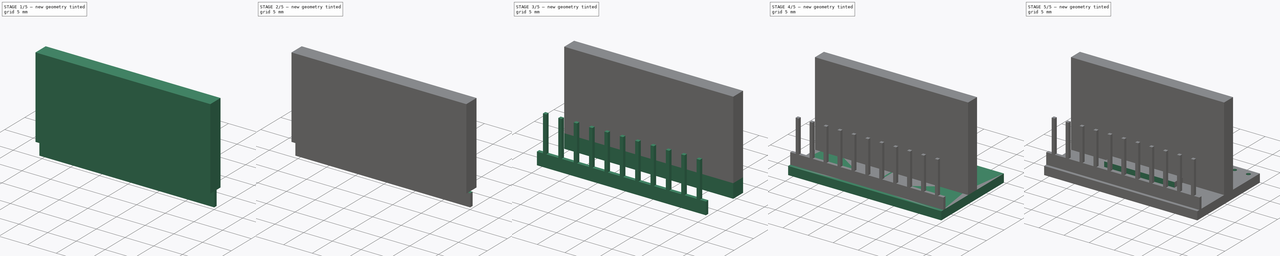
[diagram: build sequence overview — one tinted view per stage of 5, left to right]
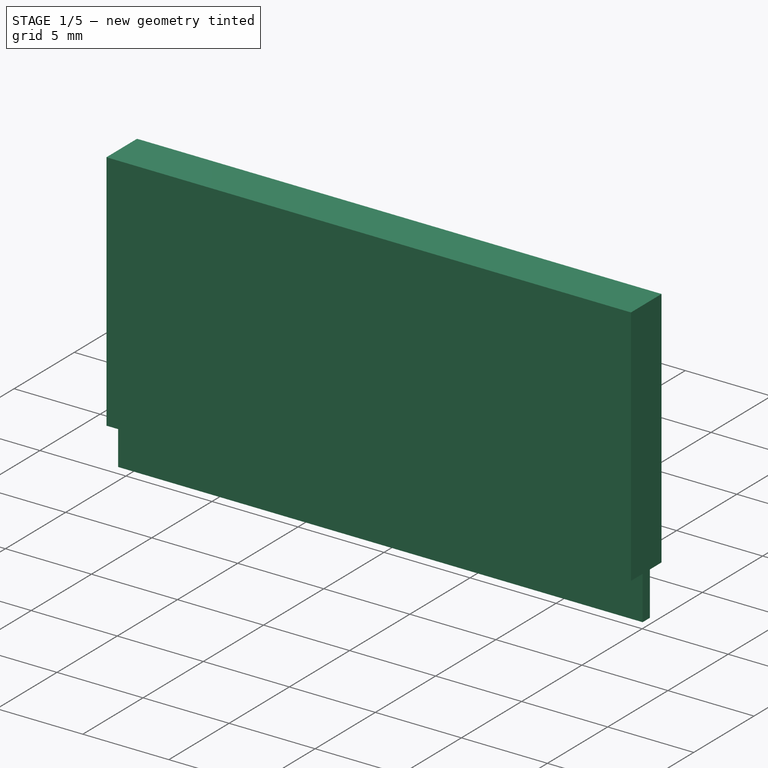
[diagram: stage 1 of 5 — iso view after this stage's code; geometry added in this stage tinted green]
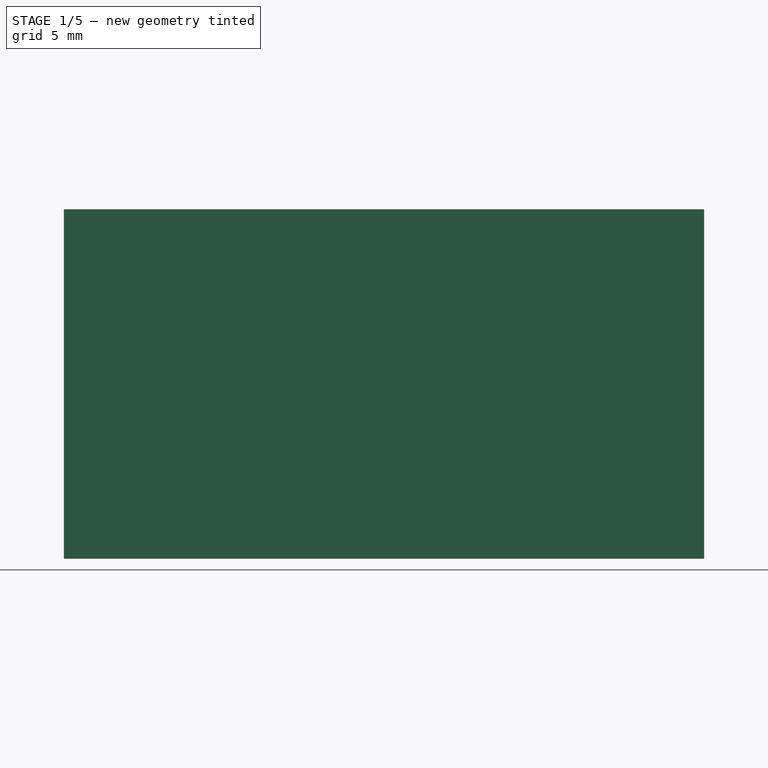
[diagram: stage 1 of 5 — front view after this stage's code; geometry added in this stage tinted green]
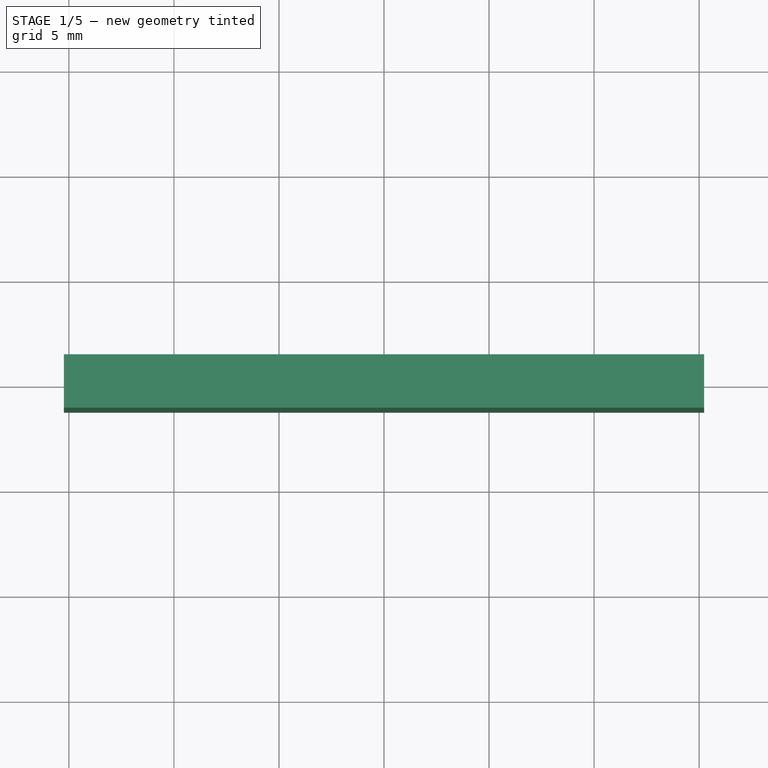
[diagram: stage 1 of 5 — top view after this stage's code; geometry added in this stage tinted green]
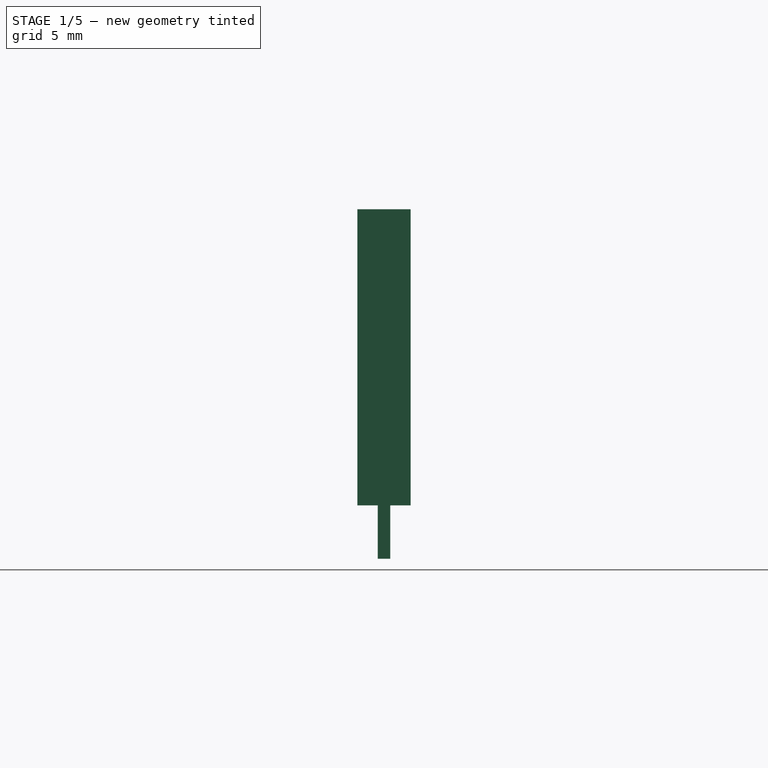
[diagram: stage 1 of 5 — right view after this stage's code; geometry added in this stage tinted green]
FCSTD DOCUMENT  (FreeCAD 0.19R24276 (Git))
Label: Adafruit_I2C_Expander
License: All rights reserved
LicenseURL: http://en.wikipedia.org/wiki/All_rights_reserved
objects: Sketcher::SketchObject×8, PartDesign::Body×8, PartDesign::Pad×5, PartDesign::LinearPattern×4, PartDesign::Pocket×3, PartDesign::FeatureBase×3, Spreadsheet::Sheet×1, App::Part×1
note: 39 computed .brp shape members not serialized (recipe doc carries the construction recipe); baked Part::Feature solids carry a one-line shape summary decoded from their .brp

FEATURE [PartDesign::Body] Body006  label="PinBlock001"
  BaseFeature = -> Body005
  Group = -> [Clone]
  Origin = -> Origin010
  Placement = pos=(0,-8,0) rot=(0,0,1;0rad)
  Tip = -> Clone
FEATURE [Sketcher::SketchObject] Sketch006
  FullyConstrained = true
  MapMode = 5
  Placement = pos=(0,0,0) rot=(1,0,0;1.5708rad)
  Support = -> [XZ_Plane011]
  expr: Constraints[9] = <<params_i2c_exp>>.pin_square_block_dim + <<params_i2c_exp>>.pin_leng
  expr: Constraints[10] = <<params_i2c_exp>>.exp_i2c_leng
  sketch-geometry (4):
    g0: LineSegment StartX=-15.24 StartY=8.74 StartZ=0 EndX=15.24 EndY=8.74 EndZ=0
    g1: LineSegment StartX=15.24 StartY=8.74 StartZ=0 EndX=15.24 EndY=0 EndZ=0
    g2: LineSegment StartX=15.24 StartY=0 StartZ=0 EndX=-15.24 EndY=0 EndZ=0
    g3: LineSegment StartX=-15.24 StartY=0 StartZ=0 EndX=-15.24 EndY=8.74 EndZ=0
  constraints (11):
    c: Coincident(g0,g1)
    c: Coincident(g1,g2)
    c: Coincident(g2,g3)
    c: Coincident(g3,g0)
    c: Horizontal(g0)
    c: Horizontal(g2)
    c: Vertical(g1)
    c: Vertical(g3)
    c: Symmetric(g2,g1,g-1)
    c: DistanceY(g1,g1) = 8.74
    c: DistanceX(g2,g2) = 30.48
FEATURE [PartDesign::Pad] Pad003
  Direction = (1,1,1)
  Length = 0.6
  Length2 = 100
  Midplane = true
  Placement = pos=(0,0,0) rot=(1,0,0;1.5708rad)
  Profile = -> Sketch006
  Type = 0
  expr: Length = <<params_i2c_exp>>.pin_width
FEATURE [PartDesign::Body] Body008  label="Pins001"
  BaseFeature = -> Body007
  Group = -> [Clone001]
  Origin = -> Origin012
  Placement = pos=(0,16,0) rot=(0,0,1;0rad)
  Tip = -> Clone001
FEATURE [Sketcher::SketchObject] Sketch008
  FullyConstrained = true
  MapMode = 5
  Placement = pos=(0,0,0) rot=(1,0,0;1.5708rad)
  Support = -> [XZ_Plane013]
  expr: Constraints[12] = <<params_i2c_exp>>.pin_square_block_dim
  expr: Constraints[11] = <<params_i2c_exp>>.pin_jumper_leng
  expr: Constraints[10] = <<params_i2c_exp>>.exp_i2c_leng
  sketch-geometry (5):
    g0: LineSegment StartX=-15.24 StartY=16.64 StartZ=0 EndX=15.24 EndY=16.64 EndZ=0
    g1: LineSegment StartX=15.24 StartY=16.64 StartZ=0 EndX=15.24 EndY=2.54 EndZ=0
    g2: LineSegment StartX=15.24 StartY=2.54 StartZ=0 EndX=-15.24 EndY=2.54 EndZ=0
    g3: LineSegment StartX=-15.24 StartY=2.54 StartZ=0 EndX=-15.24 EndY=16.64 EndZ=0
    g4: GeomPoint X=0 Y=2.54 Z=0
  constraints (13):
    c: Coincident(g0,g1)
    c: Coincident(g1,g2)
    c: Coincident(g2,g3)
    c: Coincident(g3,g0)
    c: Horizontal(g0)
    c: Horizontal(g2)
    c: Vertical(g1)
    c: Vertical(g3)
    c: PointOnObject(g4,g-2)
    c: Symmetric(g2,g1,g4)
    c: DistanceX(g0,g0) = 30.48
    c: DistanceY(g1,g1) = 14.1
    c: DistanceY(g-1,g4) = 2.54
FEATURE [PartDesign::Pad] Pad004
  Direction = (1,1,1)
  Length = 2.54
  Length2 = 100
  Midplane = true
  Placement = pos=(0,0,0) rot=(1,0,0;1.5708rad)
  Profile = -> Sketch008
  Type = 0
  expr: Length = <<params_i2c_exp>>.pin_square_block_dim
FEATURE [PartDesign::Body] Body009  label="JumperHeader"
  Group = -> [Sketch008,Pad004]
  Origin = -> Origin013
  Placement = pos=(0,8,0) rot=(0,0,1;0rad)
  Tip = -> Pad004
FEATURE [PartDesign::FeatureBase] Clone002
  BaseFeature = -> Body009
FEATURE [PartDesign::Body] Body010  label="JumperHeader001"
  BaseFeature = -> Body009
  Group = -> [Clone002]
  Origin = -> Origin014
  Placement = pos=(0,-8,0) rot=(0,0,1;0rad)
  Tip = -> Clone002
FEATURE [App::Part] Part  label="AdaF_I2CExp_Part"
  Group = -> [Body,Body004,Body005,Body006,Body007,Body008,Body009,Body010]
  Origin = -> Origin
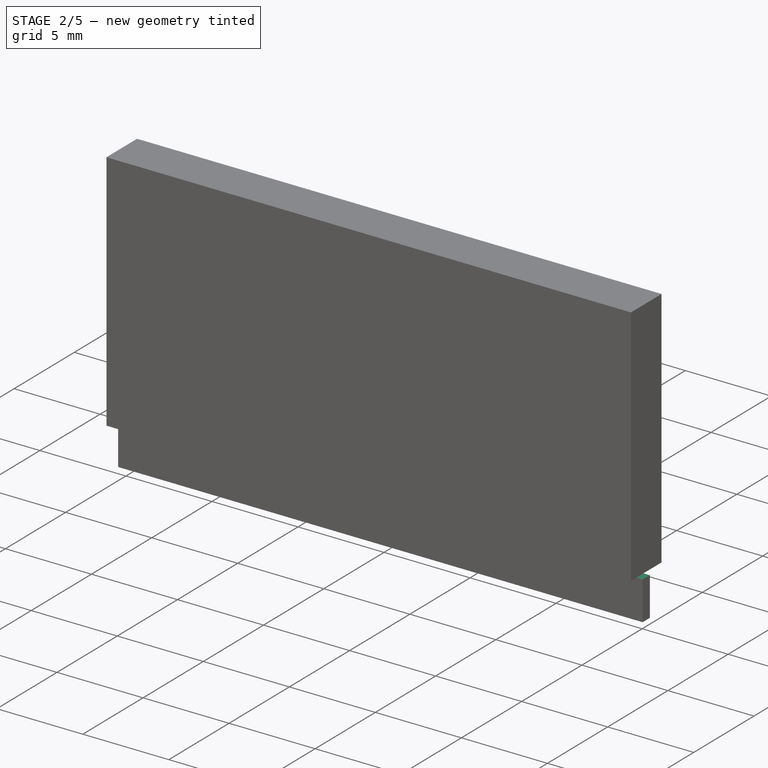
[diagram: stage 2 of 5 — iso view after this stage's code; geometry added in this stage tinted green]
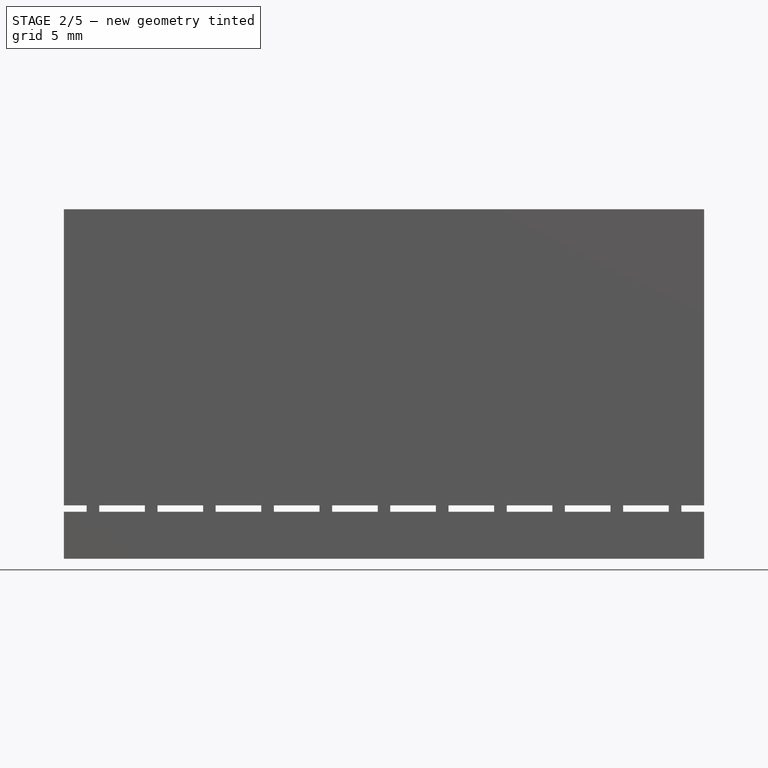
[diagram: stage 2 of 5 — front view after this stage's code; geometry added in this stage tinted green]
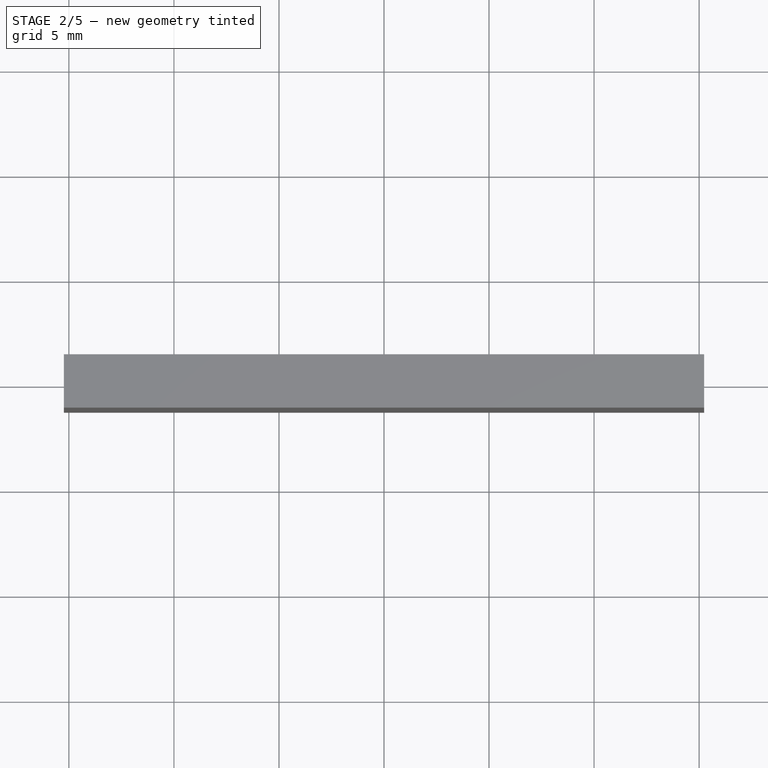
[diagram: stage 2 of 5 — top view after this stage's code; geometry added in this stage tinted green]
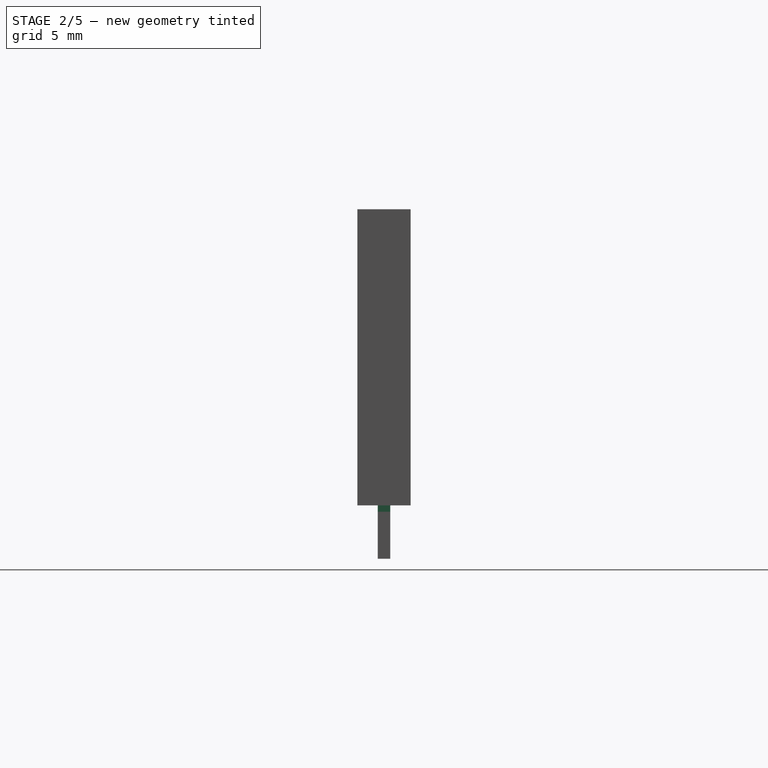
[diagram: stage 2 of 5 — right view after this stage's code; geometry added in this stage tinted green]
FEATURE [Sketcher::SketchObject] Sketch007
  FullyConstrained = true
  MapMode = 5
  Placement = pos=(0,0,0) rot=(1,0,0;1.5708rad)
  Support = -> [XZ_Plane009]
  expr: Constraints[27] = <<params_i2c_exp>>.pin_spacing
  expr: Constraints[28] = <<params_i2c_exp>>.pin_leng * 2
  expr: Constraints[21] = <<params_i2c_exp>>.pin_width
  expr: Constraints[20] = <<params_i2c_exp>>.pin_square_block_dim - <<params_i2c_exp>>.std_tol
  sketch-geometry (13):
    g0: LineSegment StartX=-2.24 StartY=14.64 StartZ=0 EndX=-0.3 EndY=14.64 EndZ=0
    g1: LineSegment StartX=-0.3 StartY=14.64 StartZ=0 EndX=-0.3 EndY=2.24 EndZ=0
    g2: LineSegment StartX=-0.3 StartY=2.24 StartZ=0 EndX=-2.24 EndY=2.24 EndZ=0
    g3: LineSegment StartX=-2.24 StartY=2.24 StartZ=0 EndX=-2.24 EndY=14.64 EndZ=0
    g4: LineSegment StartX=0.3 StartY=14.64 StartZ=0 EndX=2.24 EndY=14.64 EndZ=0
    g5: LineSegment StartX=2.24 StartY=14.64 StartZ=0 EndX=2.24 EndY=2.24 EndZ=0
    g6: LineSegment StartX=2.24 StartY=2.24 StartZ=0 EndX=0.3 EndY=2.24 EndZ=0
    g7: LineSegment StartX=0.3 StartY=2.24 StartZ=0 EndX=0.3 EndY=14.64 EndZ=0
    g8: LineSegment StartX=-0.3 StartY=14.64 StartZ=0 EndX=0.3 EndY=14.64 EndZ=0
    g9: LineSegment StartX=-0.3 StartY=2.24 StartZ=0 EndX=0.3 EndY=2.24 EndZ=0
    g10: GeomPoint X=0 Y=2.24 Z=0
    g11: GeomPoint X=-1.27 Y=2.24 Z=0
    g12: GeomPoint X=1.27 Y=2.24 Z=0
  constraints (30):
    c: Coincident(g0,g1)
    c: Coincident(g1,g2)
    c: Coincident(g2,g3)
    c: Coincident(g3,g0)
    c: Horizontal(g0)
    c: Horizontal(g2)
    c: Vertical(g1)
    c: Vertical(g3)
    c: Coincident(g4,g5)
    c: Coincident(g5,g6)
    c: Coincident(g6,g7)
    c: Coincident(g7,g4)
    c: Horizontal(g4)
    c: Vertical(g5)
    c: Vertical(g7)
    c: Coincident(g8,g0)
    c: Coincident(g8,g4)
    c: Coincident(g9,g1)
    c: Coincident(g9,g6)
    c: Horizontal(g8)
    c: DistanceY(g-1,g5) = 2.24
    c: DistanceX(g8,g8) = 0.6
    c: PointOnObject(g10,g-2)
    c: Symmetric(g1,g6,g10)
    c: Symmetric(g2,g1,g11)
    c: Symmetric(g6,g5,g12)
    c: Symmetric(g11,g12,g10)
    c: DistanceX(g11,g12) = 2.54
    c: DistanceY(g5,g5) = 12.4
    c: Horizontal(g9)
FEATURE [PartDesign::Pocket] Pocket002
  BaseFeature = -> Pad003
  Length = 5
  Length2 = 100
  Midplane = true
  Placement = pos=(0,0,0) rot=(1,0,0;1.5708rad)
  Profile = -> Sketch007
  Type = 1
FEATURE [PartDesign::LinearPattern] LinearPattern002
  BaseFeature = -> Pocket002
  Direction = -> X_Axis011
  Length = 30.48
  Occurrences = 12
  Originals = -> [Pocket002]
  Placement = pos=(0,0,0) rot=(1,0,0;1.5708rad)
  expr: Occurrences = <<params_i2c_exp>>.exp_i2c_num_pins
  expr: Length = <<params_i2c_exp>>.pin_spacing * <<params_i2c_exp>>.exp_i2c_num_pins
FEATURE [PartDesign::LinearPattern] LinearPattern003
  BaseFeature = -> LinearPattern002
  Direction = -> X_Axis011
  Length = 30.48
  Occurrences = 12
  Originals = -> [Pocket002]
  Placement = pos=(0,0,0) rot=(1,0,0;1.5708rad)
  Reversed = true
  expr: Occurrences = <<params_i2c_exp>>.exp_i2c_num_pins
  expr: Length = <<params_i2c_exp>>.pin_spacing * <<params_i2c_exp>>.exp_i2c_num_pins
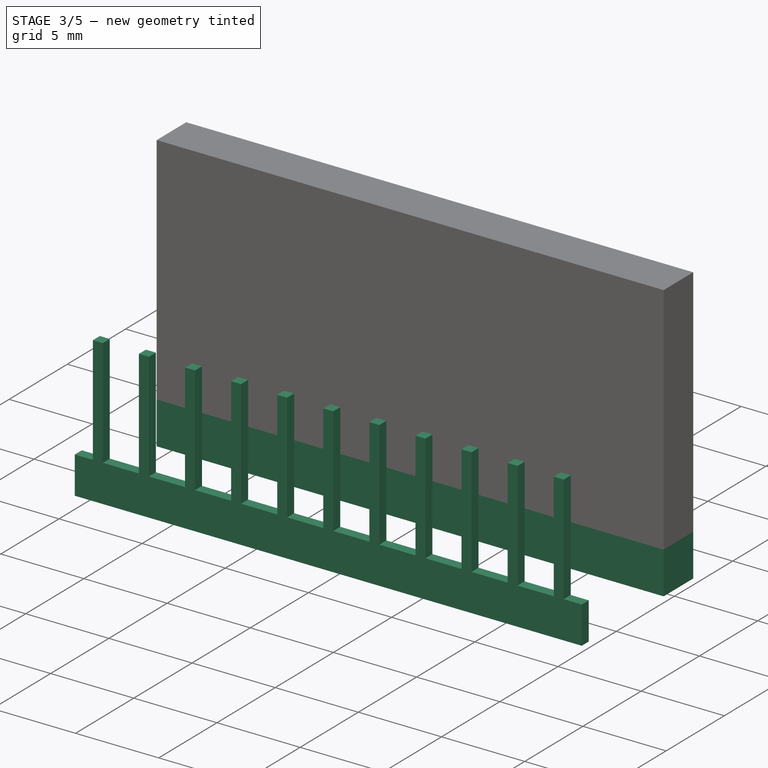
[diagram: stage 3 of 5 — iso view after this stage's code; geometry added in this stage tinted green]
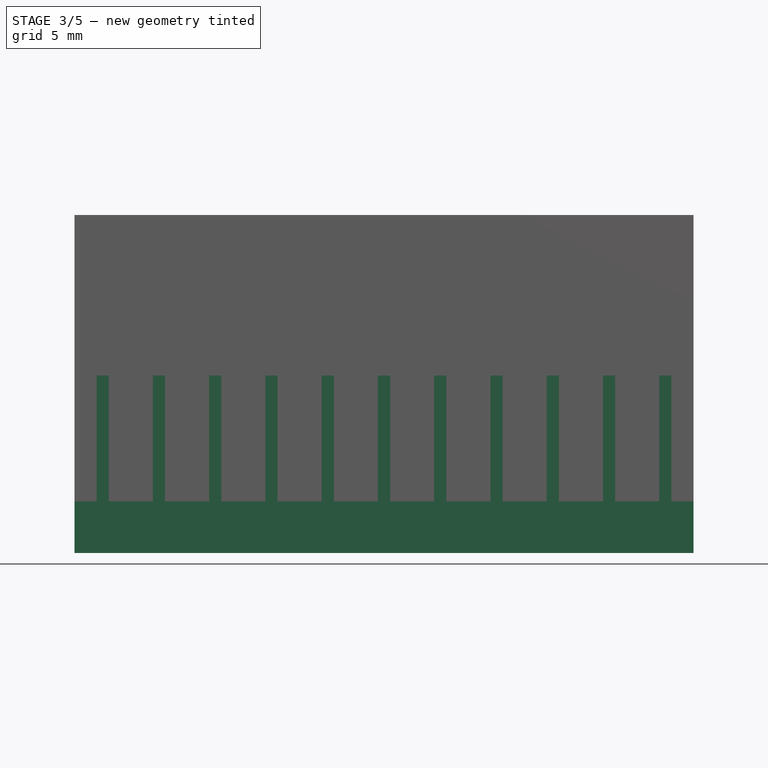
[diagram: stage 3 of 5 — front view after this stage's code; geometry added in this stage tinted green]
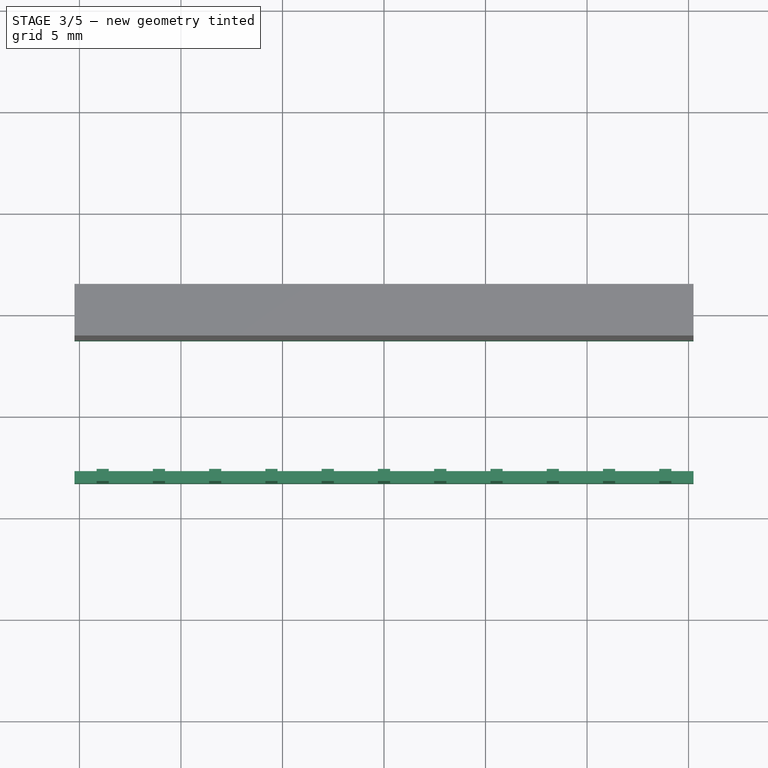
[diagram: stage 3 of 5 — top view after this stage's code; geometry added in this stage tinted green]
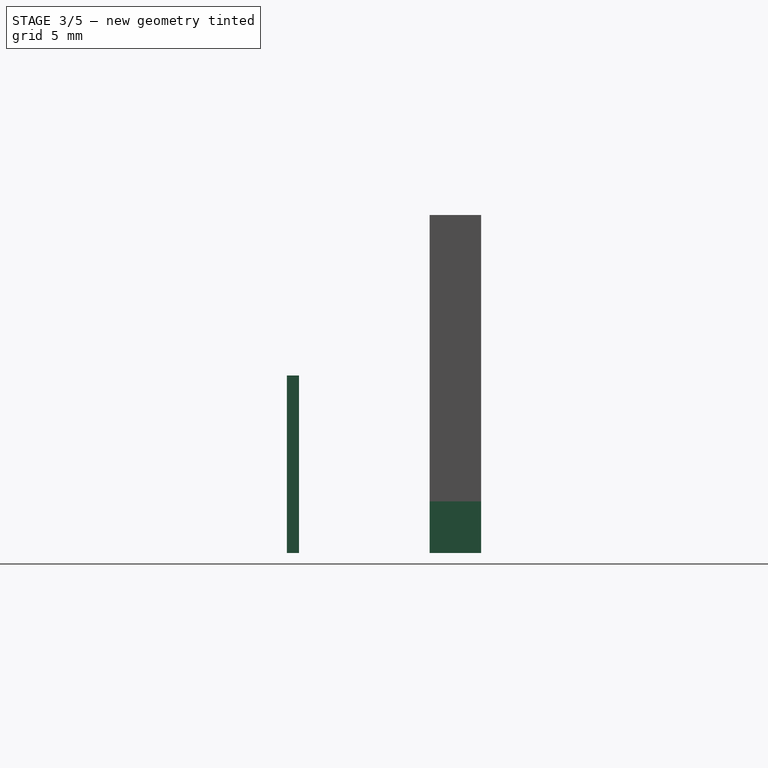
[diagram: stage 3 of 5 — right view after this stage's code; geometry added in this stage tinted green]
FEATURE [PartDesign::Body] Body  label="MainBoard"
  Group = -> [Sketch,Pad,Sketch002,Pocket,Sketch003,Pocket001,LinearPattern,LinearPattern001]
  Origin = -> Origin004
  Tip = -> LinearPattern001
FEATURE [Sketcher::SketchObject] Sketch004
  FullyConstrained = true
  MapMode = 5
  Support = -> [XY_Plane009]
  expr: Constraints[10] = <<params_i2c_exp>>.exp_i2c_num_pins * <<params_i2c_exp>>.pin_spacing
  expr: Constraints[9] = <<params_i2c_exp>>.pin_spacing
  sketch-geometry (4):
    g0: LineSegment StartX=-15.24 StartY=1.27 StartZ=0 EndX=15.24 EndY=1.27 EndZ=0
    g1: LineSegment StartX=15.24 StartY=1.27 StartZ=0 EndX=15.24 EndY=-1.27 EndZ=0
    g2: LineSegment StartX=15.24 StartY=-1.27 StartZ=0 EndX=-15.24 EndY=-1.27 EndZ=0
    g3: LineSegment StartX=-15.24 StartY=-1.27 StartZ=0 EndX=-15.24 EndY=1.27 EndZ=0
  constraints (11):
    c: Coincident(g0,g1)
    c: Coincident(g1,g2)
    c: Coincident(g2,g3)
    c: Coincident(g3,g0)
    c: Horizontal(g0)
    c: Horizontal(g2)
    c: Vertical(g1)
    c: Vertical(g3)
    c: Symmetric(g2,g0,g-1)
    c: DistanceY(g1,g1) = 2.54
    c: DistanceX(g0,g0) = 30.48
FEATURE [PartDesign::Pad] Pad002
  Direction = (1,1,1)
  Length = 2.54
  Length2 = 100
  Profile = -> Sketch004
  Type = 0
  expr: Length = <<params_i2c_exp>>.pin_square_block_dim
FEATURE [PartDesign::Body] Body005  label="PinBlock"
  Group = -> [Sketch004,Pad002]
  Origin = -> Origin009
  Placement = pos=(0,8,0) rot=(0,0,1;0rad)
  Tip = -> Pad002
FEATURE [PartDesign::FeatureBase] Clone
  BaseFeature = -> Body005
FEATURE [PartDesign::Body] Body007  label="Pins"
  Group = -> [Sketch006,Pad003,Sketch007,Pocket002,LinearPattern002,LinearPattern003]
  Origin = -> Origin011
  Placement = pos=(0,-8,0) rot=(0,0,1;0rad)
  Tip = -> LinearPattern003
FEATURE [PartDesign::FeatureBase] Clone001
  BaseFeature = -> Body007
  Placement = pos=(0,-8,0) rot=(0,0,1;0rad)
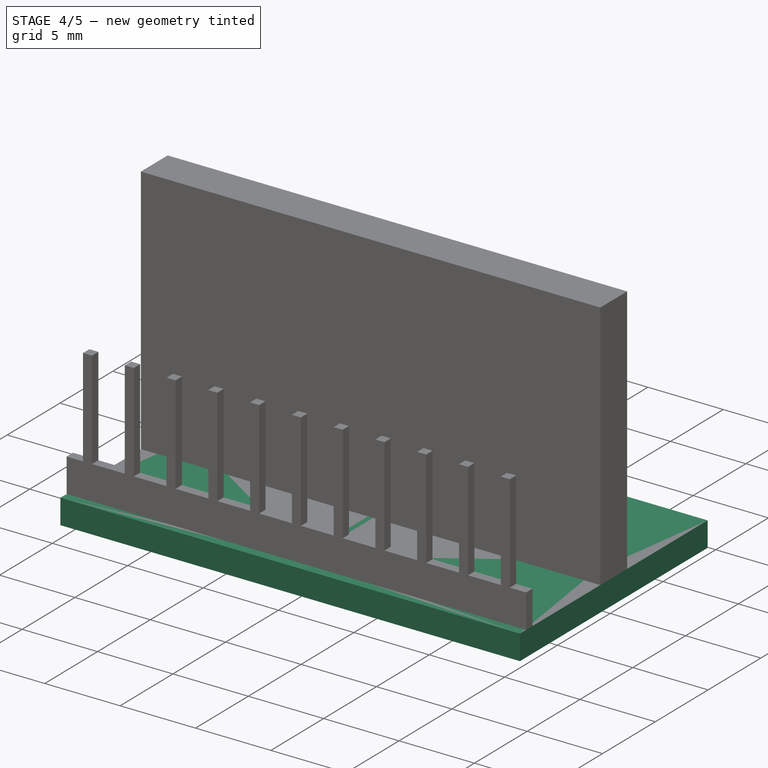
[diagram: stage 4 of 5 — iso view after this stage's code; geometry added in this stage tinted green]
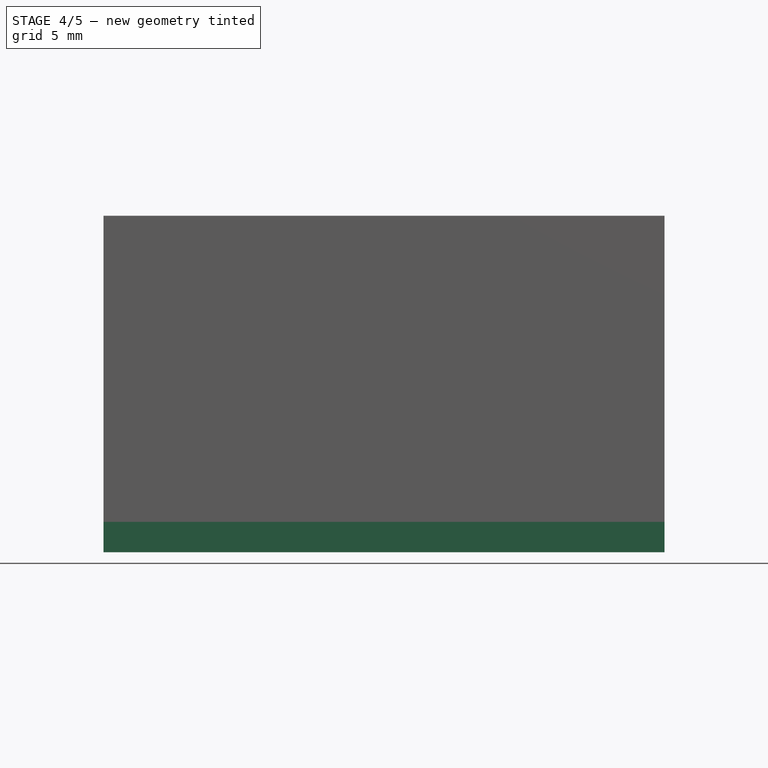
[diagram: stage 4 of 5 — front view after this stage's code; geometry added in this stage tinted green]
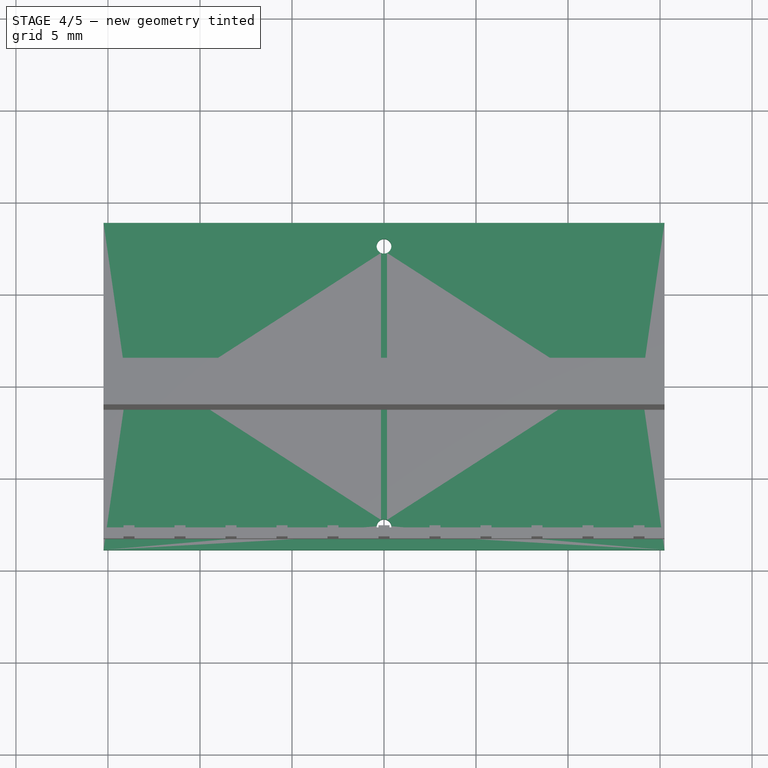
[diagram: stage 4 of 5 — top view after this stage's code; geometry added in this stage tinted green]
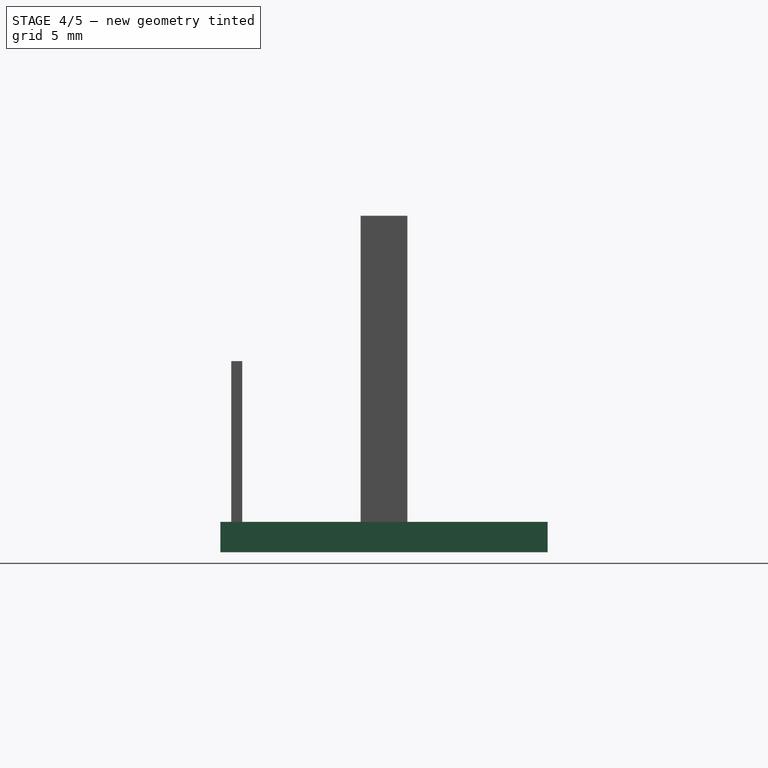
[diagram: stage 4 of 5 — right view after this stage's code; geometry added in this stage tinted green]
FEATURE [Spreadsheet::Sheet] Spreadsheet  label="params_i2c_exp"
  cells = A1=Inch to mm; B1(intomm)==25.4mm; E1=std tol; F1(std_tol)==0.3mm; A3=Adafruit I2C Exp; E3=Adafruit Temp I2C; I3=Adafruit Light; B4=Inch; C4=mm; F4=Inch; G4=mm; J4=Inch; K4=mm; A5=Length; B5=1.2; C5(exp_i2c_leng)==B5 * B$1; E5=Length; F5=0.8; G5(temp_leng)==F5 * $B$1; I5=Length; J5=0.65; K5(light_leng)==J5 * $B$1; A6=Width; B6=0.7; C6(exp_i2c_width)==B6 * B$1; E6=Width; F6=0.5; G6(temp_width)==F6 * $B$1; I6=Width; J6=0.65; K6(light_width)==J6 * $B$1; A7=Hole Leng Space; B7=1; C7(exp_i2c_hole_leng_space)==B7 * B$1; E7=Hole Leng Space; F7=0.6; G7(temp_hole_leng_space)==F7 * $B$1; I7=Hole Leng Space; J7=0.45; K7(light_hole_leng_space)==J7 * $B$1; A8=Hole Diam; B8=0.1; C8(exp_i2c_hole_mt_diam)==B8 * B$1; E8=Hole Diam; F8=0.1; G8(temp_hole_diam)==F8 * $B$1; I8=Hole Diam; J8=0.1; K8(light_hole_diam)==J8 * $B$1; A9=Num Pins; B9(exp_i2c_num_pins)=12; E9=Hole Edge Offset; F9=0.1; G9(temp_hole_edge_offset)==F9 * $B$1; I9=Hole Edge Offset; J9=0.1; K9(light_hole_edge_offset)==J9 * $B$1; A10=Pin Width Space; B10=0.6; C10(exp_i2c_pin_width_space)==B10 * B$1; E10=Pin Edge Offset; F10=0.09; G10(temp_pin_edge_offset)==F10 * $B$1; I10=Pin Edge Offset; J10=0.1; K10(light_pin_edge_offset)==J10 * $B$1; E11=Num Pins; F11(temp_num_pins)=8; I11=Num Pins; J11(light_num_pins)=5; A12=General Parameters; A13=Board Thick; B13(board_thickness)==1.65mm; A15=Pin Hole Diam; B15(pin_hole_diam)==0.8mm; A16=Pin Hole Space; B16(pin_hole_space)==2.54mm; A17=Pin Width; B17(pin_width)==0.6mm; A18=Pin Square Block Dim; B18(pin_square_block_dim)==2.54mm; A19=Pin Leng; B19(pin_leng)==6.2mm; A20=Pin Jumper Leng; B20(pin_jumper_leng)==14.1mm; A21=Pin Spacing; B21(pin_spacing)==2.54mm
FEATURE [Sketcher::SketchObject] Sketch
  FullyConstrained = true
  MapMode = 5
  Support = -> [XY_Plane004]
  expr: Constraints[10] = <<params_i2c_exp>>.exp_i2c_width
  expr: Constraints[9] = <<params_i2c_exp>>.exp_i2c_leng
  sketch-geometry (4):
    g0: LineSegment StartX=-15.24 StartY=8.89 StartZ=0 EndX=15.24 EndY=8.89 EndZ=0
    g1: LineSegment StartX=15.24 StartY=8.89 StartZ=0 EndX=15.24 EndY=-8.89 EndZ=0
    g2: LineSegment StartX=15.24 StartY=-8.89 StartZ=0 EndX=-15.24 EndY=-8.89 EndZ=0
    g3: LineSegment StartX=-15.24 StartY=-8.89 StartZ=0 EndX=-15.24 EndY=8.89 EndZ=0
  constraints (11):
    c: Coincident(g0,g1)
    c: Coincident(g1,g2)
    c: Coincident(g2,g3)
    c: Coincident(g3,g0)
    c: Horizontal(g0)
    c: Horizontal(g2)
    c: Vertical(g1)
    c: Vertical(g3)
    c: Symmetric(g2,g0,g-1)
    c: DistanceX(g0,g0) = 30.48
    c: DistanceY(g1,g1) = 17.78
FEATURE [PartDesign::Pad] Pad
  Direction = (1,1,1)
  Length = 1.65
  Length2 = 100
  Profile = -> Sketch
  Reversed = true
  Type = 0
  expr: Length = <<params_i2c_exp>>.board_thickness
FEATURE [PartDesign::Body] Body004  label="Chip"
  Group = -> [Sketch001,Pad001]
  Origin = -> Origin008
  Tip = -> Pad001
FEATURE [Sketcher::SketchObject] Sketch002
  FullyConstrained = true
  MapMode = 5
  Support = -> [XY_Plane004]
  expr: Constraints[4] = <<params_i2c_exp>>.exp_i2c_hole_leng_space
  expr: Constraints[3] = <<params_i2c_exp>>.exp_i2c_hole_mt_diam
  sketch-geometry (2):
    g0: Circle CenterX=-12.7 CenterY=0 CenterZ=0 NormalX=0 NormalY=0 NormalZ=1 AngleXU=0 Radius=1.27
    g1: Circle CenterX=12.7 CenterY=0 CenterZ=0 NormalX=0 NormalY=0 NormalZ=1 AngleXU=0 Radius=1.27
  constraints (5):
    c: PointOnObject(g0,g-1)
    c: Symmetric(g0,g1,g-1)
    c: Equal(g0,g1)
    c: Diameter(g1) = 2.54
    c: DistanceX(g0,g1) = 25.4
FEATURE [PartDesign::Pocket] Pocket
  BaseFeature = -> Pad
  Length = 5
  Length2 = 100
  Profile = -> Sketch002
  Type = 1
FEATURE [Sketcher::SketchObject] Sketch003
  FullyConstrained = true
  MapMode = 5
  Support = -> [XY_Plane004]
  expr: Constraints[4] = <<params_i2c_exp>>.exp_i2c_pin_width_space
  expr: Constraints[3] = <<params_i2c_exp>>.pin_hole_diam
  sketch-geometry (2):
    g0: Circle CenterX=0 CenterY=-7.62 CenterZ=0 NormalX=0 NormalY=0 NormalZ=1 AngleXU=0 Radius=0.4
    g1: Circle CenterX=0 CenterY=7.62 CenterZ=0 NormalX=0 NormalY=0 NormalZ=1 AngleXU=0 Radius=0.4
  constraints (5):
    c: PointOnObject(g0,g-2)
    c: Equal(g1,g0)
    c: Symmetric(g1,g0,g-1)
    c: Diameter(g1) = 0.8
    c: DistanceY(g0,g1) = 15.24
FEATURE [PartDesign::Pocket] Pocket001
  BaseFeature = -> Pocket
  Length = 5
  Length2 = 100
  Profile = -> Sketch003
  Type = 1
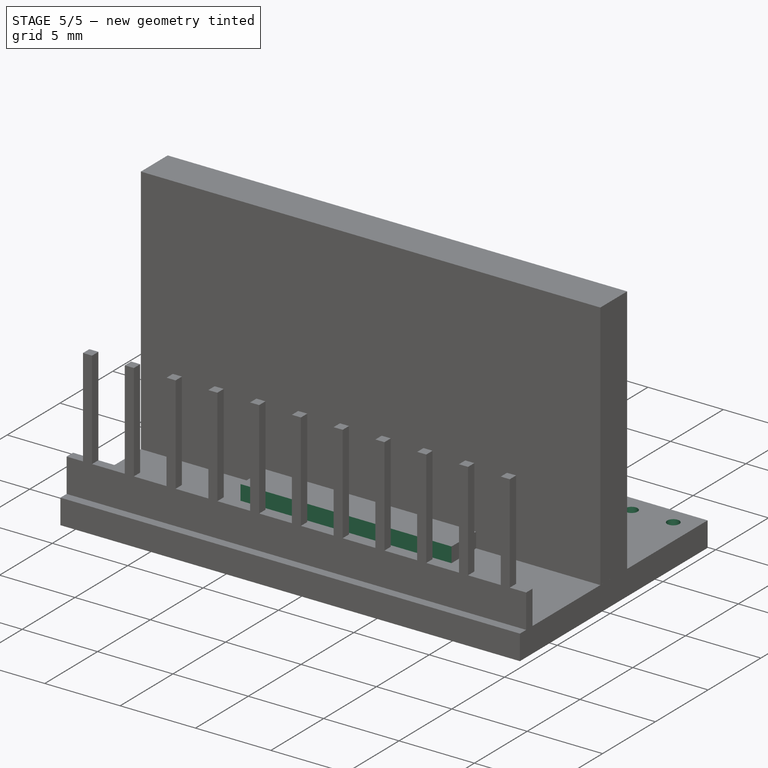
[diagram: stage 5 of 5 — iso view after this stage's code; geometry added in this stage tinted green]
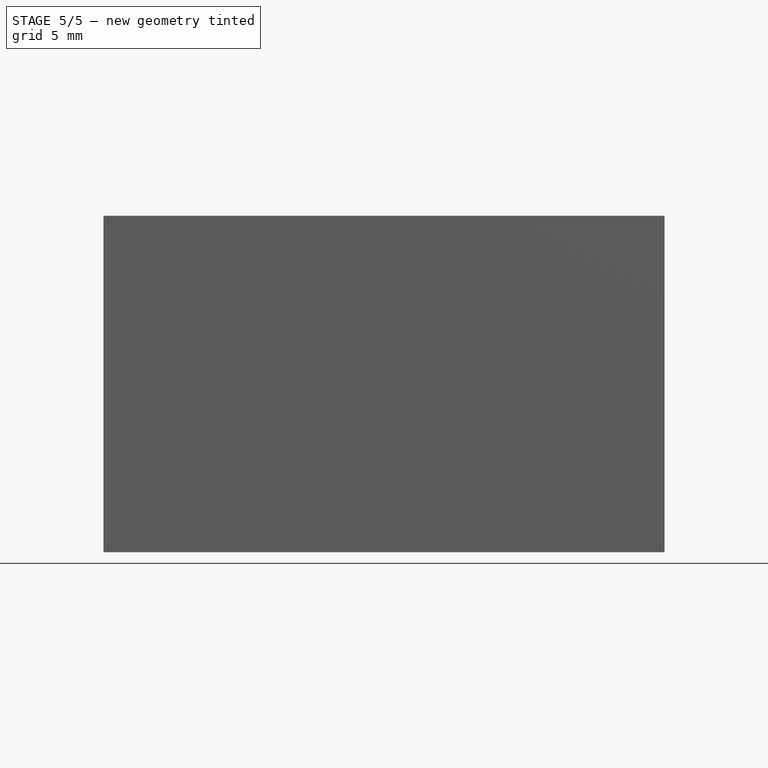
[diagram: stage 5 of 5 — front view after this stage's code; geometry added in this stage tinted green]
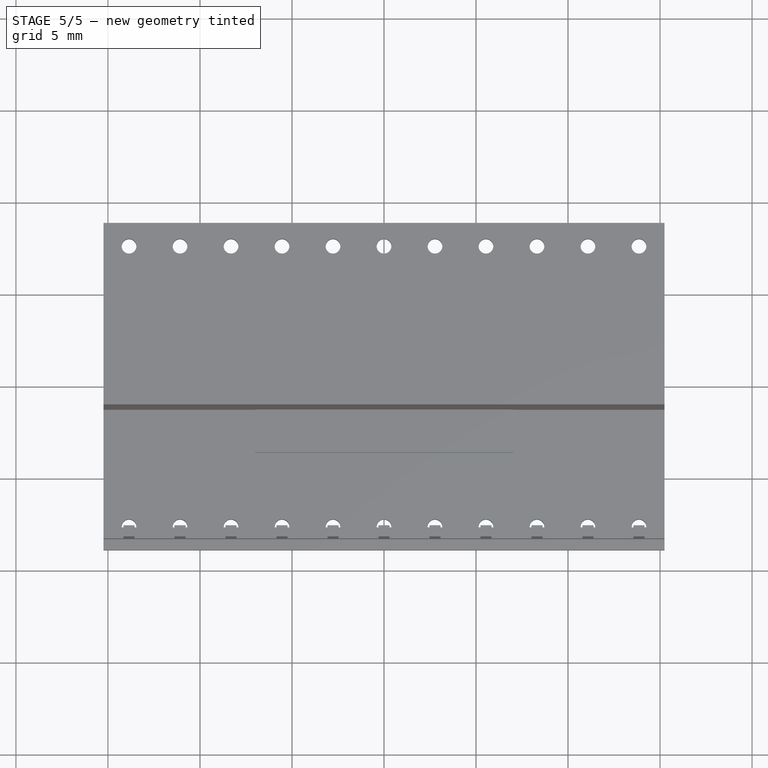
[diagram: stage 5 of 5 — top view after this stage's code; geometry added in this stage tinted green]
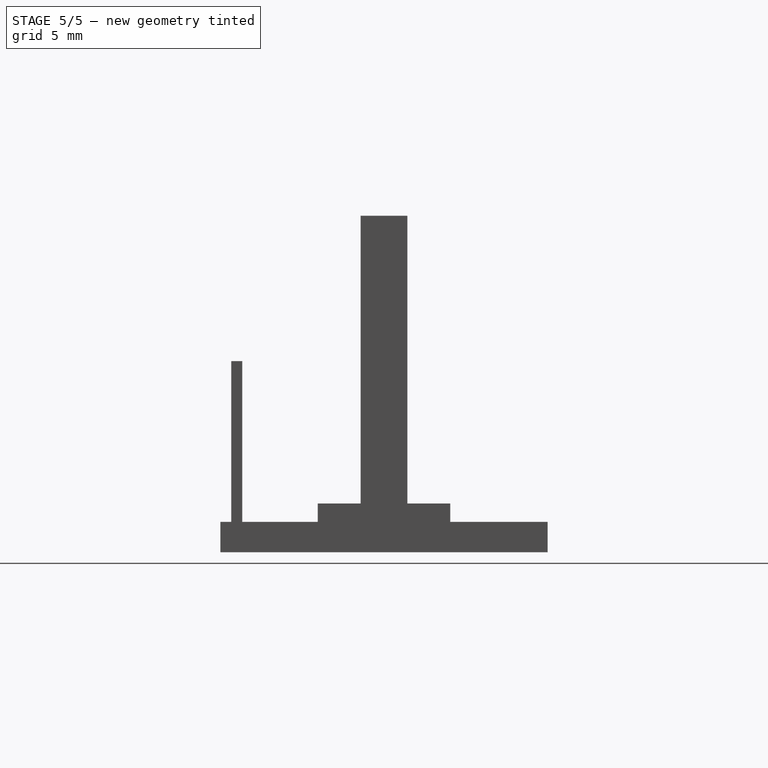
[diagram: stage 5 of 5 — right view after this stage's code; geometry added in this stage tinted green]
FEATURE [Sketcher::SketchObject] Sketch001
  FullyConstrained = true
  MapMode = 5
  Support = -> [XY_Plane008]
  sketch-geometry (4):
    g0: LineSegment StartX=-7 StartY=3.6 StartZ=0 EndX=7 EndY=3.6 EndZ=0
    g1: LineSegment StartX=7 StartY=3.6 StartZ=0 EndX=7 EndY=-3.6 EndZ=0
    g2: LineSegment StartX=7 StartY=-3.6 StartZ=0 EndX=-7 EndY=-3.6 EndZ=0
    g3: LineSegment StartX=-7 StartY=-3.6 StartZ=0 EndX=-7 EndY=3.6 EndZ=0
  constraints (11):
    c: Coincident(g0,g1)
    c: Coincident(g1,g2)
    c: Coincident(g2,g3)
    c: Coincident(g3,g0)
    c: Horizontal(g0)
    c: Horizontal(g2)
    c: Vertical(g1)
    c: Vertical(g3)
    c: DistanceX(g0,g0) = 14
    c: DistanceY(g1,g1) = 7.2
    c: Symmetric(g0,g1,g-1)
FEATURE [PartDesign::Pad] Pad001
  Direction = (1,1,1)
  Length = 1
  Length2 = 100
  Profile = -> Sketch001
  Type = 0
FEATURE [PartDesign::LinearPattern] LinearPattern
  BaseFeature = -> Pocket001
  Direction = -> X_Axis004
  Length = 30.48
  Occurrences = 12
  Originals = -> [Pocket001]
  expr: Length = <<params_i2c_exp>>.pin_spacing * <<params_i2c_exp>>.exp_i2c_num_pins
  expr: Occurrences = <<params_i2c_exp>>.exp_i2c_num_pins
FEATURE [PartDesign::LinearPattern] LinearPattern001
  BaseFeature = -> LinearPattern
  Direction = -> X_Axis004
  Length = 30.48
  Occurrences = 12
  Originals = -> [Pocket001]
  Reversed = true
  expr: Occurrences = <<params_i2c_exp>>.exp_i2c_num_pins
  expr: Length = <<params_i2c_exp>>.pin_spacing * <<params_i2c_exp>>.exp_i2c_num_pins
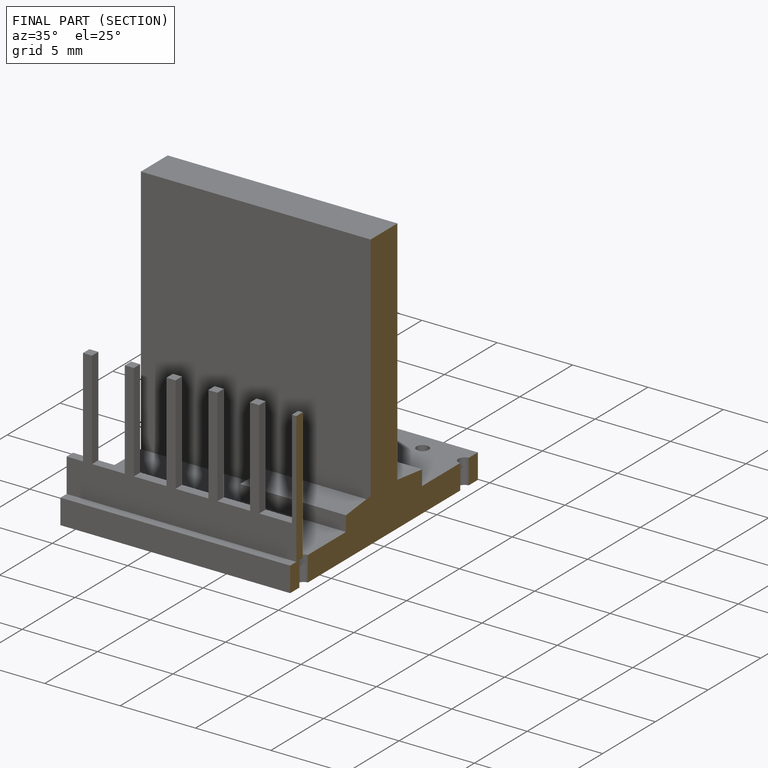
[diagram: finished part — half-section view (interior)]
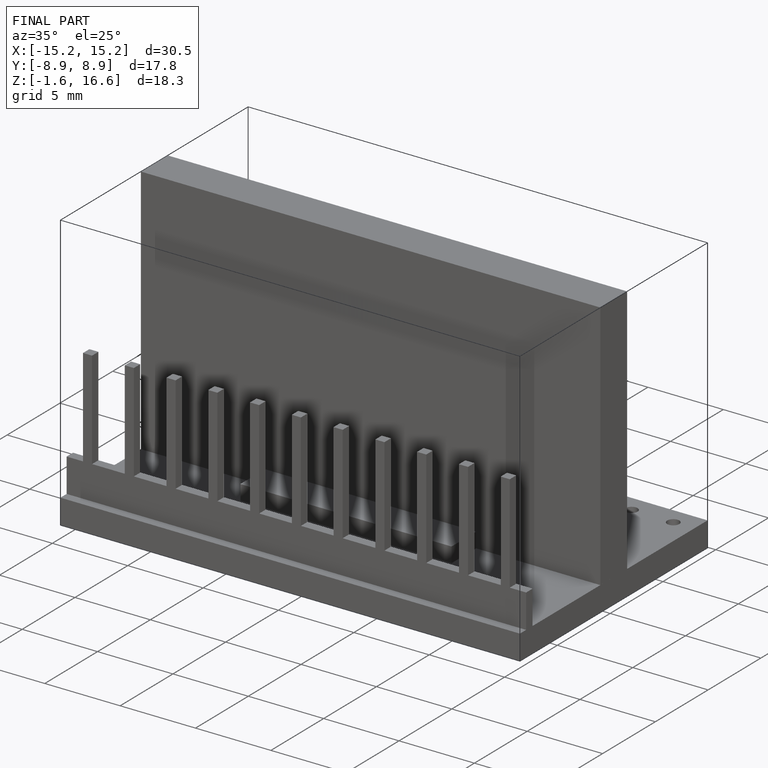
[diagram: finished part — iso view with bounding-box wireframe]
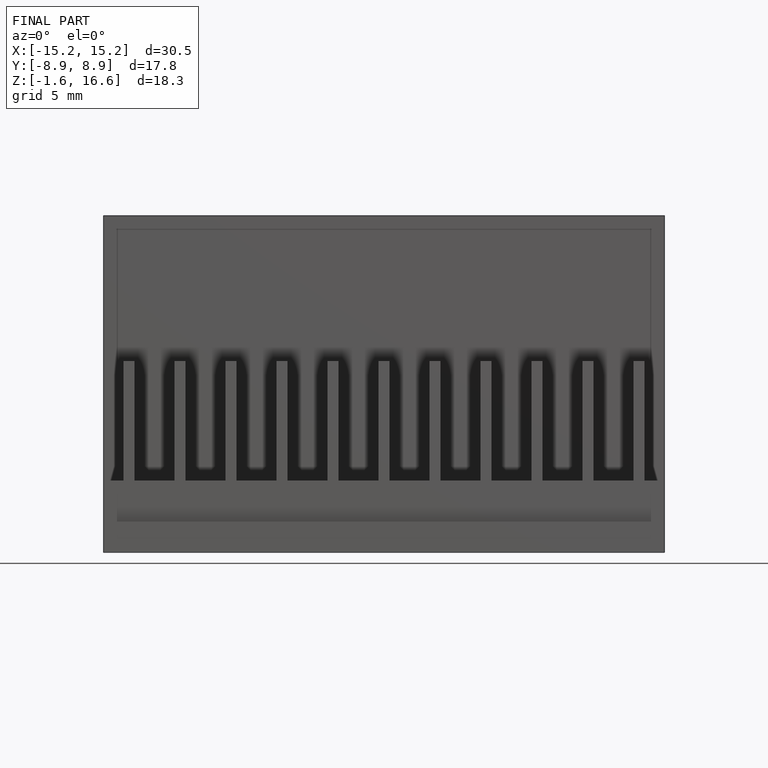
[diagram: finished part — front view with bounding-box wireframe]
